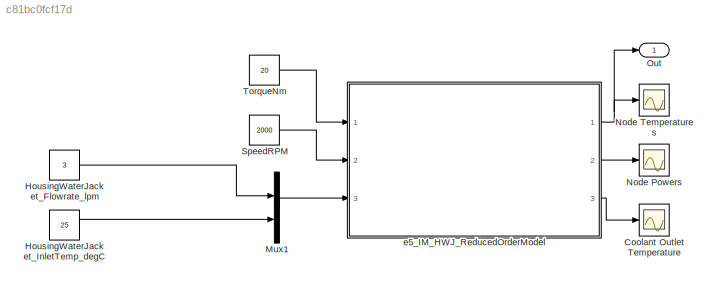
MODEL slx_c81bc0fcf17d
KIND model
CONFIG AbsTol = 1e-3
CONFIG EnableMultiTasking = off
CONFIG FixedStep = auto
CONFIG MaxStep = auto
CONFIG MinStep = auto
CONFIG RelTol = 1e-3
CONFIG SampleTimeConstraint = Unconstrained
CONFIG SolverName = VariableStepAuto
CONFIG StartTime = 0.0
CONFIG StopTime = 1000
WORKSPACE source: mxarray member
WORKSPACE AdjacencyMat = [0 0 0 0 0 0 0 0 0 0 0 0 ... (22500 elements, 150x150)]
WORKSPACE Banding_Loss_Mat = [0 0 0 0 0 0 0 0 0 0 0 0 ... (600 elements, 60x10)]
WORKSPACE CapMat = [1e+20 3424.01569452 201.412687913 100.706343957 1759.15244838 201.412687913 100.706343957 1759.15244838 5511.23811622 846.962860806 885.574007203 1771.14801441 ... (150 elements, 150x1)]
WORKSPACE CoolantArrayIdxs = [21 26]
WORKSPACE Friction_Loss_Mat = [0 0 0 0 0 0 0 0 0 0 0 0 ... (600 elements, 60x10)]
WORKSPACE InletCoolIdxs = 26
WORKSPACE Iron_Loss_Rotor_Back_Iron_Mat = [5.88326470852e-06 1.56076025776e-05 2.53319404467e-05 3.50562783158e-05 4.2300933702e-05 4.83369368178e-05 5.43729399337e-05 6.04089430495e-05 6.64449461653e-05 7.24809492811e-05 7.84736137062e-05 8.3589255068e-05 ... (600 elements, 60x10)]
WORKSPACE Iron_Loss_Rotor_Pole_Mat = [0 0 0 0 0 0 0 0 0 0 0 0 ... (600 elements, 60x10)]
WORKSPACE Iron_Loss_Rotor_Tooth_Mat = [0.0278419700669 0.0738614400866 0.119880910106 0.165900380126 0.184349086086 0.189359189802 0.194369293518 0.199379397234 0.20438950095 0.209399604666 0.214296399886 0.216900228661 ... (600 elements, 60x10)]
WORKSPACE Iron_Loss_Stator_Back_Iron_Mat = [0.53790002559 1.42701668818 2.31613335077 3.20525001336 3.70241732145 4.00853981613 4.31466231082 4.6207848055 4.92690730019 5.23302979487 5.53616386244 5.77882264901 ... (600 elements, 60x10)]
WORKSPACE Iron_Loss_Stator_Tooth_Mat = [0.271199660256 0.719476783981 1.16775390771 1.61603103143 1.84672458519 1.97136307842 2.09600157164 2.22064006486 2.34527855808 2.4699170513 2.59316467918 2.68826607189 ... (600 elements, 60x10)]
WORKSPACE LossDistrForEachType = [0 0 0 0 0 0 0 0 0 0 0 0 ... (3600 elements, 24x150)]
WORKSPACE Magnet_Loss_Mat = [0 0 0 0 0 0 0 0 0 0 0 0 ... (600 elements, 60x10)]
WORKSPACE OutletCoolIdxs = 21
WORKSPACE RotorCopperTempCoefResistivity = 0.00393
WORKSPACE Rotor_Cage_Loss_Mat = [0.456699345984 6.28399459519 12.1112898444 17.9385850936 27.2726785492 38.3160632724 49.3594479955 60.4028327187 71.4462174418 82.489602165 93.9268779717 113.335127481 ... (600 elements, 60x10)]
WORKSPACE ShaftTorqueVec = [0.507550270421 6.70105098359 12.8945516968 19.0880524099 25.2815531231 31.4750538363 37.6685545494 43.8620552626 50.0555559758 56.2490566889 62.4425574021 68.6360581153 ... (60 elements, 1x60)]
WORKSPACE Sleeve_Loss_Mat = [0 0 0 0 0 0 0 0 0 0 0 0 ... (600 elements, 60x10)]
WORKSPACE SpeedVec = [200 1511.11111111 2822.22222222 4133.33333333 5444.44444444 6755.55555556 8066.66666667 9377.77777778 10688.8888889 12000]
WORKSPACE StateSpaceND: object (value not decoded)
WORKSPACE StatorCopperTempCoefResistivity = 0.00393
WORKSPACE Stator_Copper_Loss_AC_Mat = [0 0 0 0 0 0 0 0 0 0 0 0 ... (600 elements, 60x10)]
WORKSPACE Stator_Copper_Loss_Mat = [2.8235353719 37.2258275756 71.6281197793 106.030411983 145.909218795 188.457400361 231.005581927 273.553763493 316.101945058 358.650126624 402.34399667 469.222582309 ... (600 elements, 60x10)]
WORKSPACE Stray_Load_Loss_Mat = [0.107374828342 1.41764124858 2.72790766881 4.03817408905 5.34844050928 6.65870692952 7.96897334976 9.27923976999 10.5895061902 11.8997726105 13.2100390307 14.5203054509 ... (600 elements, 60x10)]
WORKSPACE Stray_Loss_Stator_Iron_Proportion = 0.95
WORKSPACE TnodesInit = [20 20 20 20 20 20 20 20 20 20 20 20 ... (150 elements, 150x1)]
WORKSPACE TrefRotor = 140
WORKSPACE TrefStator = 100
WORKSPACE Windage_Loss_Mat = [0 0 0 0 0 0 0 0 0 0 0 0 ... (600 elements, 60x10)]
BLOCK [Scope] Coolant Outlet Temperature
  Floating = off
  NumInputPorts = 1
  Ports = [1]
BLOCK [Constant] HousingWaterJacket_Flowrate_lpm
  Value = 3
BLOCK [Constant] HousingWaterJacket_InletTemp_degC
  Value = 25
BLOCK [Mux] Mux1
  DisplayOption = bar
  Inputs = 2
  Ports = [2, 1]
BLOCK [Scope] Node Powers
  Floating = off
  NumInputPorts = 1
  Ports = [1]
BLOCK [Scope] Node Temperatures
  Floating = off
  NumInputPorts = 1
  Ports = [1]
BLOCK [Outport] Out
BLOCK [Constant] SpeedRPM
  Value = 2000
BLOCK [Constant] TorqueNm
  Value = 20
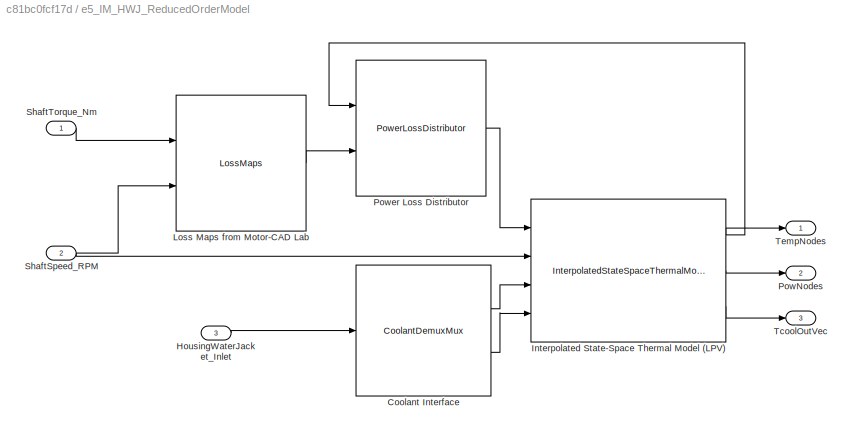
BLOCK [SubSystem] e5_IM_HWJ_ReducedOrderModel
  Ports = [3, 3]
  RequestExecContextInheritance = off
BLOCK [Reference] e5_IM_HWJ_ReducedOrderModel/Coolant Interface  REF=mcadROM_lib/CoolantDemuxMux
  Ports = [1, 2]
  SourceBlock = mcadROM_lib/CoolantDemuxMux
BLOCK [Inport] e5_IM_HWJ_ReducedOrderModel/HousingWaterJacket_Inlet
  Port = 3
BLOCK [Reference] e5_IM_HWJ_ReducedOrderModel/Interpolated State-Space Thermal Model (LPV)  REF=mcadROM_lib/InterpolatedStateSpaceThermalModel (LPV)
  Ports = [4, 3]
  SourceBlock = mcadROM_lib/InterpolatedStateSpaceThermalModel (LPV)
BLOCK [Reference] e5_IM_HWJ_ReducedOrderModel/Loss Maps from Motor-CAD Lab  REF=mcadROM_lib/LossMaps
  Ports = [2, 1]
  SourceBlock = mcadROM_lib/LossMaps
BLOCK [Outport] e5_IM_HWJ_ReducedOrderModel/PowNodes
  Port = 2
BLOCK [Reference] e5_IM_HWJ_ReducedOrderModel/Power Loss Distributor  REF=mcadROM_lib/PowerLossDistributor
  Ports = [2, 1]
  SourceBlock = mcadROM_lib/PowerLossDistributor
BLOCK [Inport] e5_IM_HWJ_ReducedOrderModel/ShaftSpeed_RPM
  Port = 2
BLOCK [Inport] e5_IM_HWJ_ReducedOrderModel/ShaftTorque_Nm
BLOCK [Outport] e5_IM_HWJ_ReducedOrderModel/TcoolOutVec
  Port = 3
BLOCK [Outport] e5_IM_HWJ_ReducedOrderModel/TempNodes
LINE HousingWaterJacket_Flowrate_lpm:1 -> Mux1:1
LINE HousingWaterJacket_InletTemp_degC:1 -> Mux1:2
LINE Mux1:1 -> e5_IM_HWJ_ReducedOrderModel:3
LINE SpeedRPM:1 -> e5_IM_HWJ_ReducedOrderModel:2
LINE TorqueNm:1 -> e5_IM_HWJ_ReducedOrderModel:1
LINE e5_IM_HWJ_ReducedOrderModel/Coolant Interface:1 -> e5_IM_HWJ_ReducedOrderModel/Interpolated State-Space Thermal Model (LPV):3
LINE e5_IM_HWJ_ReducedOrderModel/Coolant Interface:2 -> e5_IM_HWJ_ReducedOrderModel/Interpolated State-Space Thermal Model (LPV):4
LINE e5_IM_HWJ_ReducedOrderModel/HousingWaterJacket_Inlet:1 -> e5_IM_HWJ_ReducedOrderModel/Coolant Interface:1
NET e5_IM_HWJ_ReducedOrderModel/Interpolated State-Space Thermal Model (LPV):1 -> e5_IM_HWJ_ReducedOrderModel/Power Loss Distributor:1, e5_IM_HWJ_ReducedOrderModel/TempNodes:1
LINE e5_IM_HWJ_ReducedOrderModel/Interpolated State-Space Thermal Model (LPV):2 -> e5_IM_HWJ_ReducedOrderModel/PowNodes:1
LINE e5_IM_HWJ_ReducedOrderModel/Interpolated State-Space Thermal Model (LPV):3 -> e5_IM_HWJ_ReducedOrderModel/TcoolOutVec:1
LINE e5_IM_HWJ_ReducedOrderModel/Loss Maps from Motor-CAD Lab:1 -> e5_IM_HWJ_ReducedOrderModel/Power Loss Distributor:2
LINE e5_IM_HWJ_ReducedOrderModel/Power Loss Distributor:1 -> e5_IM_HWJ_ReducedOrderModel/Interpolated State-Space Thermal Model (LPV):1
NET e5_IM_HWJ_ReducedOrderModel/ShaftSpeed_RPM:1 -> e5_IM_HWJ_ReducedOrderModel/Interpolated State-Space Thermal Model (LPV):2, e5_IM_HWJ_ReducedOrderModel/Loss Maps from Motor-CAD Lab:2
LINE e5_IM_HWJ_ReducedOrderModel/ShaftTorque_Nm:1 -> e5_IM_HWJ_ReducedOrderModel/Loss Maps from Motor-CAD Lab:1
NET e5_IM_HWJ_ReducedOrderModel:1 -> Node Temperatures:1, Out:1
LINE e5_IM_HWJ_ReducedOrderModel:2 -> Node Powers:1
LINE e5_IM_HWJ_ReducedOrderModel:3 -> Coolant Outlet Temperature:1
note: NET lines group one-source signal fan-out (src -> all destinations, sorted); 1:1 wires keep LINE
